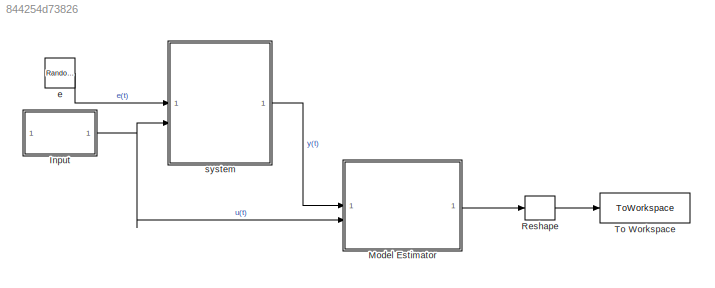
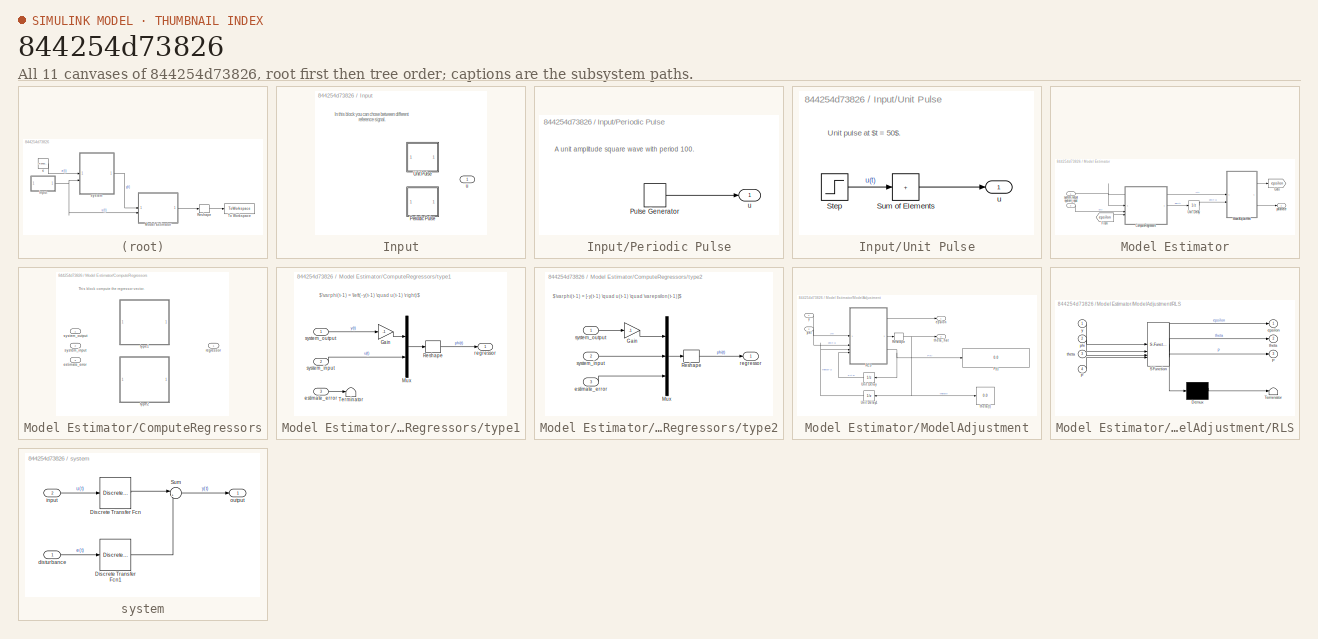
[diagram: thumbnail index - all 11 canvases of the model, root first then tree order]
MODEL slx_844254d73826
KIND model
CONFIG AbsTol = auto
CONFIG EnableMultiTasking = off
CONFIG FixedStep = sample_time
CONFIG MaxStep = auto
CONFIG MinStep = auto
CONFIG RelTol = 1e-3
CONFIG SampleTimeConstraint = Unconstrained
CONFIG SolverName = FixedStepAuto
CONFIG StartTime = start_time
CONFIG StopTime = stop_time
BLOCK [SubSystem] Input
  Variant = on
  VariantControl = Choice
BLOCK [SubSystem] Input/Periodic Pulse
  VariantControl = input_type == 2
BLOCK [DiscretePulseGenerator] Input/Periodic Pulse/Pulse Generator
  Period = 100
  PulseType = Time based
  PulseWidth = 50
BLOCK [Outport] Input/Periodic Pulse/u
BLOCK [SubSystem] Input/Unit Pulse
  VariantControl = input_type == 1
BLOCK [Step] Input/Unit Pulse/Step
  After = [1 -1]
  SampleTime = sample_time
  Time = [50 51]
BLOCK [Sum] Input/Unit Pulse/Sum of Elements
  IconShape = rectangular
  Inputs = +
BLOCK [Outport] Input/Unit Pulse/u
BLOCK [Outport] Input/u
BLOCK [SubSystem] Model Estimator
BLOCK [SubSystem] Model Estimator/ComputeRegressors
  Variant = on
  VariantControl = Choice
BLOCK [Inport] Model Estimator/ComputeRegressors/estimate_error
  Port = 3
BLOCK [Outport] Model Estimator/ComputeRegressors/regressor
BLOCK [Inport] Model Estimator/ComputeRegressors/system_input
  Port = 2
BLOCK [Inport] Model Estimator/ComputeRegressors/system_output
BLOCK [SubSystem] Model Estimator/ComputeRegressors/type1
  VariantControl = regressor_type == 1
BLOCK [Gain] Model Estimator/ComputeRegressors/type1/Gain
  Gain = -1
BLOCK [Mux] Model Estimator/ComputeRegressors/type1/Mux
  DisplayOption = bar
  Inputs = 2
BLOCK [Reshape] Model Estimator/ComputeRegressors/type1/Reshape
  OutputDimensionality = Column vector (2-D)
BLOCK [Terminator] Model Estimator/ComputeRegressors/type1/Terminator
BLOCK [Inport] Model Estimator/ComputeRegressors/type1/estimate_error
  Port = 3
BLOCK [Outport] Model Estimator/ComputeRegressors/type1/regressor
BLOCK [Inport] Model Estimator/ComputeRegressors/type1/system_input
  Port = 2
BLOCK [Inport] Model Estimator/ComputeRegressors/type1/system_output
BLOCK [SubSystem] Model Estimator/ComputeRegressors/type2
  VariantControl = regressor_type == 2
BLOCK [Gain] Model Estimator/ComputeRegressors/type2/Gain
  Gain = -1
BLOCK [Mux] Model Estimator/ComputeRegressors/type2/Mux
  DisplayOption = bar
  Inputs = 3
BLOCK [Reshape] Model Estimator/ComputeRegressors/type2/Reshape
  OutputDimensionality = Column vector (2-D)
BLOCK [Inport] Model Estimator/ComputeRegressors/type2/estimate_error
  Port = 3
BLOCK [Outport] Model Estimator/ComputeRegressors/type2/regressor
BLOCK [Inport] Model Estimator/ComputeRegressors/type2/system_input
  Port = 2
BLOCK [Inport] Model Estimator/ComputeRegressors/type2/system_output
BLOCK [From] Model Estimator/From
  GotoTag = epsilon
BLOCK [Goto] Model Estimator/Goto
  GotoTag = epsilon
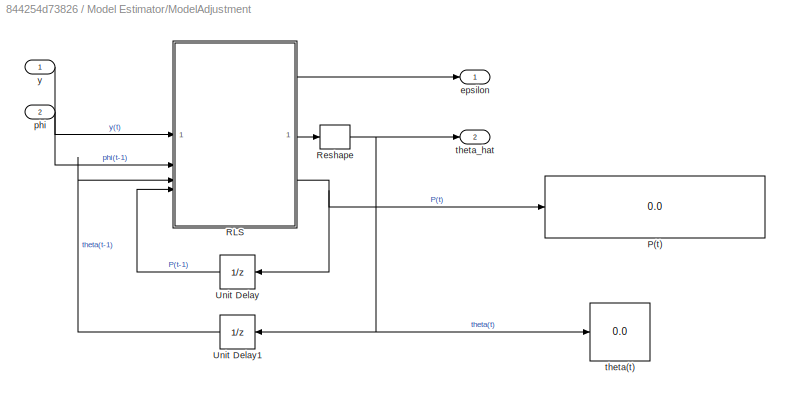
BLOCK [SubSystem] Model Estimator/ModelAdjustment
BLOCK [Display] Model Estimator/ModelAdjustment/P(t)
  Decimation = 1
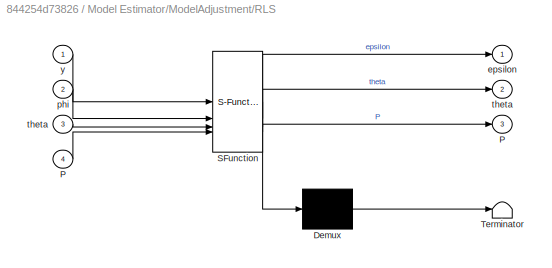
BLOCK [SubSystem] Model Estimator/ModelAdjustment/RLS
  ErrorFcn = Stateflow.Translate.translate
  LibrarySourceBlock = simulink/User-Defined\nFunctions/MATLAB Function
  PermitHierarchicalResolution = ExplicitOnly
  SFBlockType = MATLAB Function
  TreatAsAtomicUnit = on
BLOCK [Demux] Model Estimator/ModelAdjustment/RLS/ Demux 
  Outputs = 1
BLOCK [S-Function] Model Estimator/ModelAdjustment/RLS/ SFunction 
  EnableBusSupport = on
  FunctionName = sf_sfun
  PortCounts = [4 4]
  SFcnIsStateOwnerBlock = off
  SFunctionDeploymentMode = off
  Tag = Stateflow S-Function 2
BLOCK [Terminator] Model Estimator/ModelAdjustment/RLS/ Terminator 
BLOCK [Outport] Model Estimator/ModelAdjustment/RLS/P
  Port = 3
BLOCK [Inport] Model Estimator/ModelAdjustment/RLS/P 
  Port = 4
BLOCK [Outport] Model Estimator/ModelAdjustment/RLS/epsilon
BLOCK [Inport] Model Estimator/ModelAdjustment/RLS/phi
  Port = 2
BLOCK [Outport] Model Estimator/ModelAdjustment/RLS/theta
  Port = 2
BLOCK [Inport] Model Estimator/ModelAdjustment/RLS/theta 
  Port = 3
BLOCK [Inport] Model Estimator/ModelAdjustment/RLS/y
BLOCK [Reshape] Model Estimator/ModelAdjustment/Reshape
  OutputDimensionality = Column vector (2-D)
BLOCK [UnitDelay] Model Estimator/ModelAdjustment/Unit Delay
  HasFrameUpgradeWarning = on
  InitialCondition = P0
  NameLocation = top
  SampleTime = -1
BLOCK [UnitDelay] Model Estimator/ModelAdjustment/Unit Delay1
  HasFrameUpgradeWarning = on
  InitialCondition = theta0
  NameLocation = top
  SampleTime = -1
BLOCK [Outport] Model Estimator/ModelAdjustment/epsilon
BLOCK [Inport] Model Estimator/ModelAdjustment/phi
  Port = 2
BLOCK [Display] Model Estimator/ModelAdjustment/theta(t)
  Decimation = 1
BLOCK [Outport] Model Estimator/ModelAdjustment/theta_hat
  Port = 2
BLOCK [Inport] Model Estimator/ModelAdjustment/y
BLOCK [UnitDelay] Model Estimator/Unit Delay
  HasFrameUpgradeWarning = on
  SampleTime = -1
BLOCK [Outport] Model Estimator/parameter
BLOCK [Inport] Model Estimator/system_input
  Port = 2
BLOCK [Inport] Model Estimator/system_output
BLOCK [Reshape] Reshape
BLOCK [ToWorkspace] To Workspace
  FixptAsFi = on
  MaxDataPoints = inf
  SampleTime = -1
  SaveFormat = Timeseries
  VariableName = theta
BLOCK [RandomNumber] e
  Mean = mean_e
  SampleTime = sample_time
  Seed = seed_e
  Variance = std_e^2
BLOCK [SubSystem] system
BLOCK [DiscreteTransferFcn] system/Discrete Transfer Fcn
  Denominator = A
  InputPortMap = u0
  Numerator = B
BLOCK [DiscreteTransferFcn] system/Discrete Transfer Fcn1
  Denominator = A
  InputPortMap = u0
  Numerator = C
BLOCK [Sum] system/Sum
  Inputs = |++
BLOCK [Inport] system/disturbance
BLOCK [Inport] system/input
  Port = 2
BLOCK [Outport] system/output
ANNOTATION Input: In this block you can chose between different reference signal.
ANNOTATION Input/Periodic Pulse: A unit amplitude square wave with period 100.
ANNOTATION Input/Unit Pulse: Unit pulse at $t = 50$ .
ANNOTATION Model Estimator/ComputeRegressors: This block compute the regressor vector.
ANNOTATION Model Estimator/ComputeRegressors/type1: $\varphi(t-1) = \left(-y(t-1) \quad u(t-1) \right)$
ANNOTATION Model Estimator/ComputeRegressors/type2: $\varphi(t-1) = [-y(t-1) \quad u(t-1) \quad \varepsilon(t-1)]$
LINE Input/Periodic Pulse/Pulse Generator:1 -> Input/Periodic Pulse/u:1
LINE Input/Unit Pulse/Step:1 -> Input/Unit Pulse/Sum of Elements:1
LINE Input/Unit Pulse/Sum of Elements:1 -> Input/Unit Pulse/u:1
NET Input:1 -> Model Estimator:2, system:2
LINE Model Estimator/ComputeRegressors/type1/Gain:1 -> Model Estimator/ComputeRegressors/type1/Mux:1
LINE Model Estimator/ComputeRegressors/type1/Mux:1 -> Model Estimator/ComputeRegressors/type1/Reshape:1
LINE Model Estimator/ComputeRegressors/type1/Reshape:1 -> Model Estimator/ComputeRegressors/type1/regressor:1
LINE Model Estimator/ComputeRegressors/type1/estimate_error:1 -> Model Estimator/ComputeRegressors/type1/Terminator:1
LINE Model Estimator/ComputeRegressors/type1/system_input:1 -> Model Estimator/ComputeRegressors/type1/Mux:2
LINE Model Estimator/ComputeRegressors/type1/system_output:1 -> Model Estimator/ComputeRegressors/type1/Gain:1
LINE Model Estimator/ComputeRegressors/type2/Gain:1 -> Model Estimator/ComputeRegressors/type2/Mux:1
LINE Model Estimator/ComputeRegressors/type2/Mux:1 -> Model Estimator/ComputeRegressors/type2/Reshape:1
LINE Model Estimator/ComputeRegressors/type2/Reshape:1 -> Model Estimator/ComputeRegressors/type2/regressor:1
LINE Model Estimator/ComputeRegressors/type2/estimate_error:1 -> Model Estimator/ComputeRegressors/type2/Mux:3
LINE Model Estimator/ComputeRegressors/type2/system_input:1 -> Model Estimator/ComputeRegressors/type2/Mux:2
LINE Model Estimator/ComputeRegressors/type2/system_output:1 -> Model Estimator/ComputeRegressors/type2/Gain:1
LINE Model Estimator/ComputeRegressors:1 -> Model Estimator/Unit Delay:1
LINE Model Estimator/From:1 -> Model Estimator/ComputeRegressors:3
LINE Model Estimator/ModelAdjustment/RLS:1 -> Model Estimator/ModelAdjustment/epsilon:1
LINE Model Estimator/ModelAdjustment/RLS:2 -> Model Estimator/ModelAdjustment/Reshape:1
NET Model Estimator/ModelAdjustment/RLS:3 -> Model Estimator/ModelAdjustment/P(t):1, Model Estimator/ModelAdjustment/Unit Delay:1
NET Model Estimator/ModelAdjustment/Reshape:1 -> Model Estimator/ModelAdjustment/Unit Delay1:1, Model Estimator/ModelAdjustment/theta(t):1, Model Estimator/ModelAdjustment/theta_hat:1
LINE Model Estimator/ModelAdjustment/Unit Delay1:1 -> Model Estimator/ModelAdjustment/RLS:3
LINE Model Estimator/ModelAdjustment/Unit Delay:1 -> Model Estimator/ModelAdjustment/RLS:4
LINE Model Estimator/ModelAdjustment/phi:1 -> Model Estimator/ModelAdjustment/RLS:2
LINE Model Estimator/ModelAdjustment/y:1 -> Model Estimator/ModelAdjustment/RLS:1
LINE Model Estimator/ModelAdjustment:1 -> Model Estimator/Goto:1
LINE Model Estimator/ModelAdjustment:2 -> Model Estimator/parameter:1
LINE Model Estimator/Unit Delay:1 -> Model Estimator/ModelAdjustment:2
LINE Model Estimator/system_input:1 -> Model Estimator/ComputeRegressors:2
NET Model Estimator/system_output:1 -> Model Estimator/ComputeRegressors:1, Model Estimator/ModelAdjustment:1
LINE Model Estimator:1 -> Reshape:1
LINE Reshape:1 -> To Workspace:1
LINE e:1 -> system:1
LINE system/Discrete Transfer Fcn1:1 -> system/Sum:2
LINE system/Discrete Transfer Fcn:1 -> system/Sum:1
LINE system/Sum:1 -> system/output:1
LINE system/disturbance:1 -> system/Discrete Transfer Fcn1:1
LINE system/input:1 -> system/Discrete Transfer Fcn:1
LINE system:1 -> Model Estimator:1
note: NET lines group one-source signal fan-out (src -> all destinations, sorted); 1:1 wires keep LINE
CHART Model Estimator/ModelAdjustment/RLS states=1 transitions=1
  STATE_LABEL 'eML_blk_kernel()'
  STATE_LABEL "SCRIPT:\nfunction [epsilon,theta,P] = fcn(y,phi,theta,P)\nepsilon = y - phi' * theta;\nP = P - P * phi / ( 1 + phi' * P * phi ) * phi' * P;\ntheta = theta + P * phi * epsilon;"
CHART  states=0 transitions=0
